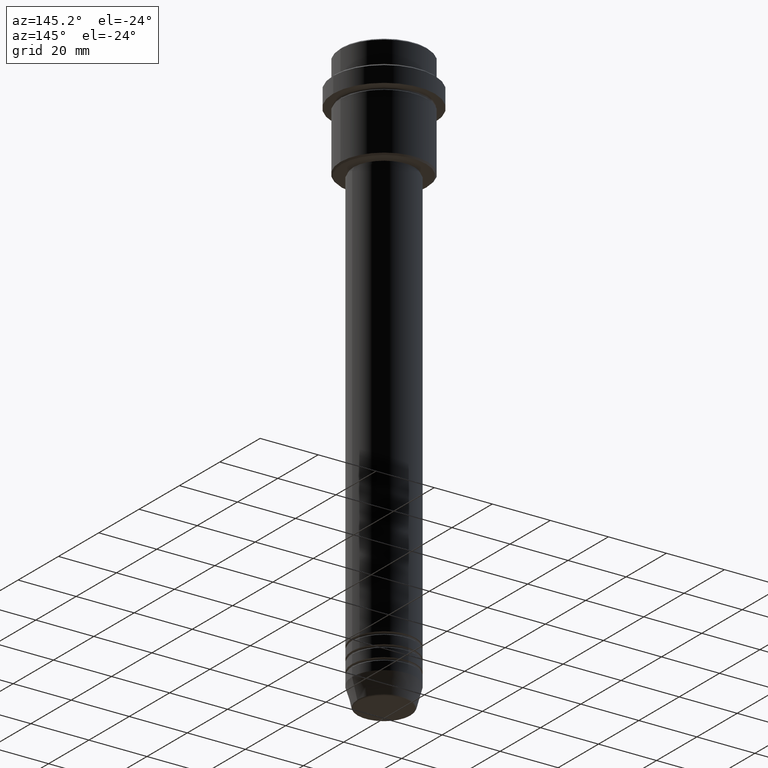
[diagram: clean part render]
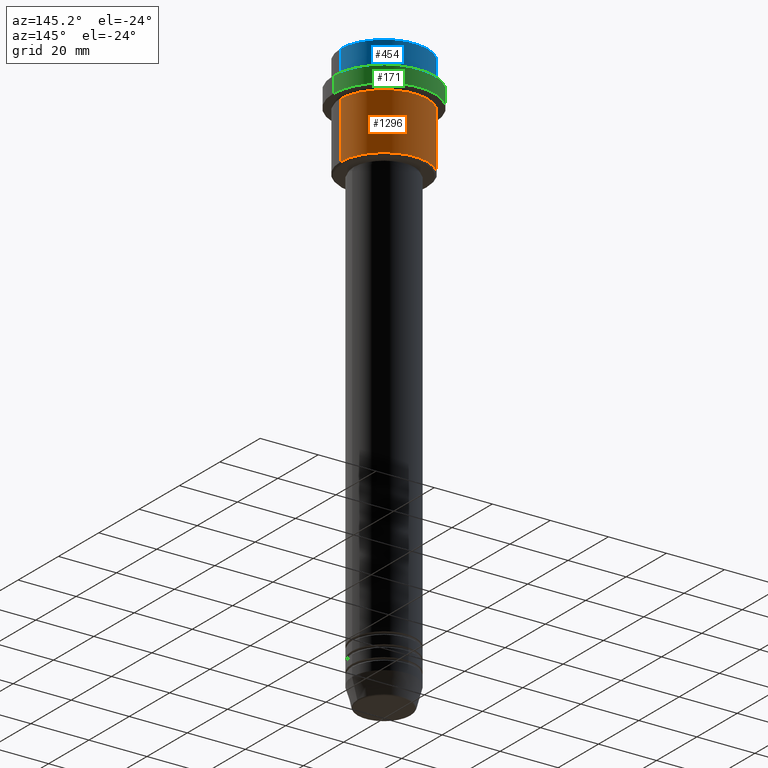
[diagram: same view with three faces highlighted in distinct colors, each labeled with its STEP entity id]
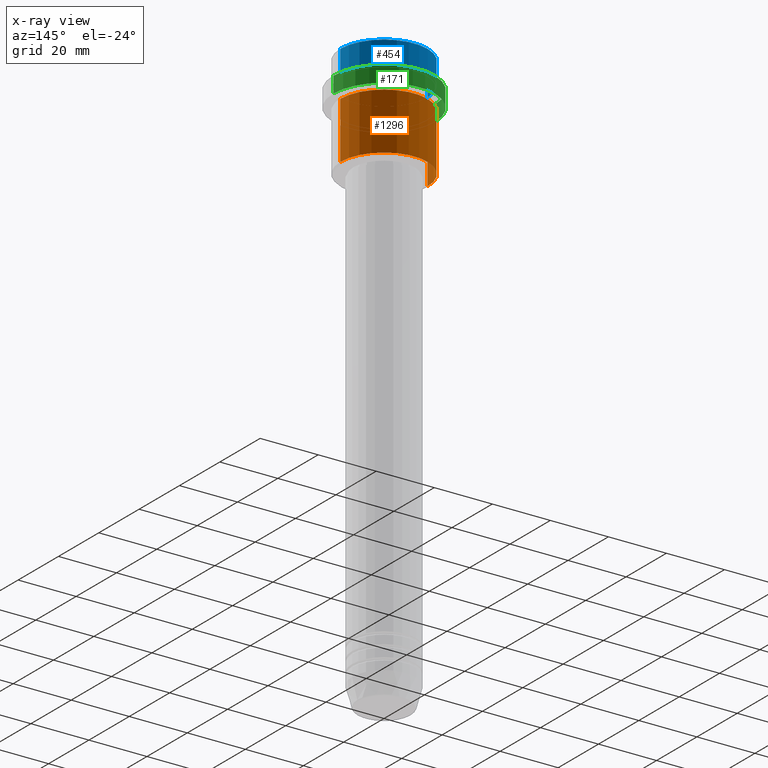
[diagram: x-ray of the same camera — body ghosted, the three highlighted faces saturated]
A machine part, auxiliary view with three faces highlighted in distinct colors.
The next image is the same camera in x-ray (body ghosted, the three faces saturated) — at least one of them is partly hidden behind the body in this view.
Their STEP definitions:

[orange] entity #1296 — the highlighted cylindrical surface (partial cylindrical patch) has radius 15 mm, axis along (-0, -0, 1).
#8 = AXIS2_PLACEMENT_3D ( 'NONE', #1033, #1349, #387 ) ;
#32 = VERTEX_POINT ( 'NONE', #1370 ) ;
#150 = AXIS2_PLACEMENT_3D ( 'NONE', #601, #364, #500 ) ;
#168 = VERTEX_POINT ( 'NONE', #420 ) ;
#216 = VERTEX_POINT ( 'NONE', #649 ) ;
#250 = CARTESIAN_POINT ( 'NONE',  ( -15.00000000000000000, 1.836970198721029589E-15, 0.000000000000000000 ) ) ;
#263 = DIRECTION ( 'NONE',  ( -0.000000000000000000, -0.000000000000000000, 1.000000000000000000 ) ) ;
#364 = DIRECTION ( 'NONE',  ( -0.000000000000000000, -0.000000000000000000, 1.000000000000000000 ) ) ;
#370 = ORIENTED_EDGE ( 'NONE', *, *, #783, .T. ) ;
#387 = DIRECTION ( 'NONE',  ( 1.000000000000000000, 0.000000000000000000, 0.000000000000000000 ) ) ;
#395 = CIRCLE ( 'NONE', #8, 15.00000000000000178 ) ;
#420 = CARTESIAN_POINT ( 'NONE',  ( -15.00000000000000355, 1.836970198721029983E-15, -16.00000000000000000 ) ) ;
#431 = LINE ( 'NONE', #1085, #685 ) ;
#442 = ORIENTED_EDGE ( 'NONE', *, *, #643, .F. ) ;
#489 = ORIENTED_EDGE ( 'NONE', *, *, #1287, .T. ) ;
#500 = DIRECTION ( 'NONE',  ( -1.000000000000000000, 0.000000000000000000, 0.000000000000000000 ) ) ;
#520 = ORIENTED_EDGE ( 'NONE', *, *, #947, .F. ) ;
#579 = CYLINDRICAL_SURFACE ( 'NONE', #688, 15.00000000000000000 ) ;
#601 = CARTESIAN_POINT ( 'NONE',  ( 0.000000000000000000, 0.000000000000000000, -35.50000000000004263 ) ) ;
#640 = VECTOR ( 'NONE', #1227, 1000.000000000000000 ) ;
#643 = EDGE_CURVE ( 'NONE', #216, #899, #431, .T. ) ;
#649 = CARTESIAN_POINT ( 'NONE',  ( 15.00000000000000000, 0.000000000000000000, -35.50000000000004263 ) ) ;
#685 = VECTOR ( 'NONE', #872, 1000.000000000000000 ) ;
#688 = AXIS2_PLACEMENT_3D ( 'NONE', #1372, #263, #1023 ) ;
#746 = EDGE_LOOP ( 'NONE', ( #489, #370, #520, #442 ) ) ;
#783 = EDGE_CURVE ( 'NONE', #32, #168, #786, .T. ) ;
#786 = LINE ( 'NONE', #250, #640 ) ;
#872 = DIRECTION ( 'NONE',  ( -0.000000000000000000, -0.000000000000000000, 1.000000000000000000 ) ) ;
#898 = CIRCLE ( 'NONE', #150, 15.00000000000000000 ) ;
#899 = VERTEX_POINT ( 'NONE', #918 ) ;
#915 = FACE_OUTER_BOUND ( 'NONE', #746, .T. ) ;
#918 = CARTESIAN_POINT ( 'NONE',  ( 15.00000000000000178, 0.000000000000000000, -16.00000000000000000 ) ) ;
#947 = EDGE_CURVE ( 'NONE', #899, #168, #395, .T. ) ;
#1023 = DIRECTION ( 'NONE',  ( 1.000000000000000000, 0.000000000000000000, 0.000000000000000000 ) ) ;
#1033 = CARTESIAN_POINT ( 'NONE',  ( 0.000000000000000000, 0.000000000000000000, -16.00000000000000000 ) ) ;
#1085 = CARTESIAN_POINT ( 'NONE',  ( 15.00000000000000000, 0.000000000000000000, 0.000000000000000000 ) ) ;
#1227 = DIRECTION ( 'NONE',  ( -0.000000000000000000, -0.000000000000000000, 1.000000000000000000 ) ) ;
#1287 = EDGE_CURVE ( 'NONE', #216, #32, #898, .T. ) ;
#1296 = ADVANCED_FACE ( 'NONE', ( #915 ), #579, .T. ) ;
#1349 = DIRECTION ( 'NONE',  ( -0.000000000000000000, -0.000000000000000000, 1.000000000000000000 ) ) ;
#1370 = CARTESIAN_POINT ( 'NONE',  ( -15.00000000000000000, 1.836970198721029589E-15, -35.50000000000004263 ) ) ;
#1372 = CARTESIAN_POINT ( 'NONE',  ( 0.000000000000000000, 0.000000000000000000, 0.000000000000000000 ) ) ;

[blue] entity #454 — the highlighted cylindrical surface (partial cylindrical patch) has radius 15 mm, axis along (-0, -0, 1).
#62 = EDGE_CURVE ( 'NONE', #514, #1172, #574, .T. ) ;
#66 = CARTESIAN_POINT ( 'NONE',  ( 15.00000000000000000, 0.000000000000000000, -0.5000000000000108802 ) ) ;
#127 = EDGE_CURVE ( 'NONE', #565, #837, #1032, .T. ) ;
#166 = AXIS2_PLACEMENT_3D ( 'NONE', #829, #921, #815 ) ;
#265 = EDGE_LOOP ( 'NONE', ( #467, #1025, #1345, #546 ) ) ;
#281 = FACE_OUTER_BOUND ( 'NONE', #265, .T. ) ;
#416 = VECTOR ( 'NONE', #1241, 1000.000000000000000 ) ;
#454 = ADVANCED_FACE ( 'NONE', ( #281 ), #1134, .T. ) ;
#467 = ORIENTED_EDGE ( 'NONE', *, *, #62, .T. ) ;
#514 = VERTEX_POINT ( 'NONE', #704 ) ;
#546 = ORIENTED_EDGE ( 'NONE', *, *, #853, .F. ) ;
#565 = VERTEX_POINT ( 'NONE', #641 ) ;
#574 = CIRCLE ( 'NONE', #1146, 15.00000000000000000 ) ;
#641 = CARTESIAN_POINT ( 'NONE',  ( -15.00000000000000000, 1.836970198721029589E-15, -0.5000000000000108802 ) ) ;
#668 = CARTESIAN_POINT ( 'NONE',  ( -15.00000000000000000, 1.836970198721029589E-15, -7.999999999999998224 ) ) ;
#704 = CARTESIAN_POINT ( 'NONE',  ( 15.00000000000000000, 0.000000000000000000, -7.999999999999998224 ) ) ;
#717 = DIRECTION ( 'NONE',  ( -0.000000000000000000, -0.000000000000000000, 1.000000000000000000 ) ) ;
#719 = LINE ( 'NONE', #1155, #416 ) ;
#756 = CARTESIAN_POINT ( 'NONE',  ( 0.000000000000000000, 0.000000000000000000, -0.5000000000000108802 ) ) ;
#815 = DIRECTION ( 'NONE',  ( 1.000000000000000000, 0.000000000000000000, 0.000000000000000000 ) ) ;
#829 = CARTESIAN_POINT ( 'NONE',  ( 0.000000000000000000, 0.000000000000000000, 0.000000000000000000 ) ) ;
#831 = CARTESIAN_POINT ( 'NONE',  ( -15.00000000000000000, 1.836970198721029589E-15, 0.000000000000000000 ) ) ;
#837 = VERTEX_POINT ( 'NONE', #66 ) ;
#853 = EDGE_CURVE ( 'NONE', #514, #837, #719, .T. ) ;
#864 = DIRECTION ( 'NONE',  ( 1.000000000000000000, 0.000000000000000000, 0.000000000000000000 ) ) ;
#921 = DIRECTION ( 'NONE',  ( -0.000000000000000000, -0.000000000000000000, 1.000000000000000000 ) ) ;
#946 = VECTOR ( 'NONE', #717, 1000.000000000000000 ) ;
#984 = AXIS2_PLACEMENT_3D ( 'NONE', #756, #1071, #864 ) ;
#1025 = ORIENTED_EDGE ( 'NONE', *, *, #1393, .T. ) ;
#1032 = CIRCLE ( 'NONE', #984, 15.00000000000000000 ) ;
#1071 = DIRECTION ( 'NONE',  ( 0.000000000000000000, 0.000000000000000000, -1.000000000000000000 ) ) ;
#1119 = LINE ( 'NONE', #831, #946 ) ;
#1134 = CYLINDRICAL_SURFACE ( 'NONE', #166, 15.00000000000000000 ) ;
#1146 = AXIS2_PLACEMENT_3D ( 'NONE', #1164, #1152, #1269 ) ;
#1152 = DIRECTION ( 'NONE',  ( -0.000000000000000000, -0.000000000000000000, 1.000000000000000000 ) ) ;
#1155 = CARTESIAN_POINT ( 'NONE',  ( 15.00000000000000000, 0.000000000000000000, 0.000000000000000000 ) ) ;
#1164 = CARTESIAN_POINT ( 'NONE',  ( 0.000000000000000000, 0.000000000000000000, -7.999999999999998224 ) ) ;
#1172 = VERTEX_POINT ( 'NONE', #668 ) ;
#1241 = DIRECTION ( 'NONE',  ( -0.000000000000000000, -0.000000000000000000, 1.000000000000000000 ) ) ;
#1269 = DIRECTION ( 'NONE',  ( 1.000000000000000000, 0.000000000000000000, 0.000000000000000000 ) ) ;
#1345 = ORIENTED_EDGE ( 'NONE', *, *, #127, .T. ) ;
#1393 = EDGE_CURVE ( 'NONE', #1172, #565, #1119, .T. ) ;

[green] entity #171 — the highlighted cylindrical surface (partial cylindrical patch) has radius 17.5 mm, axis along (-0, -0, 1).
#23 = DIRECTION ( 'NONE',  ( 1.000000000000000000, 0.000000000000000000, 0.000000000000000000 ) ) ;
#143 = CIRCLE ( 'NONE', #325, 17.50000000000000000 ) ;
#161 = ORIENTED_EDGE ( 'NONE', *, *, #294, .T. ) ;
#171 = ADVANCED_FACE ( 'NONE', ( #1203 ), #538, .T. ) ;
#175 = CARTESIAN_POINT ( 'NONE',  ( 0.000000000000000000, 0.000000000000000000, -9.500000000000026645 ) ) ;
#224 = VERTEX_POINT ( 'NONE', #732 ) ;
#294 = EDGE_CURVE ( 'NONE', #385, #767, #1263, .T. ) ;
#296 = LINE ( 'NONE', #973, #729 ) ;
#307 = CARTESIAN_POINT ( 'NONE',  ( 0.000000000000000000, 0.000000000000000000, 0.000000000000000000 ) ) ;
#325 = AXIS2_PLACEMENT_3D ( 'NONE', #175, #698, #605 ) ;
#385 = VERTEX_POINT ( 'NONE', #582 ) ;
#410 = DIRECTION ( 'NONE',  ( 1.000000000000000000, 0.000000000000000000, 0.000000000000000000 ) ) ;
#455 = ORIENTED_EDGE ( 'NONE', *, *, #517, .T. ) ;
#517 = EDGE_CURVE ( 'NONE', #224, #1247, #143, .T. ) ;
#521 = DIRECTION ( 'NONE',  ( -0.000000000000000000, -0.000000000000000000, 1.000000000000000000 ) ) ;
#538 = CYLINDRICAL_SURFACE ( 'NONE', #1210, 17.50000000000000000 ) ;
#582 = CARTESIAN_POINT ( 'NONE',  ( 17.50000000000000000, 0.000000000000000000, -15.00000000000000000 ) ) ;
#605 = DIRECTION ( 'NONE',  ( 1.000000000000000000, 0.000000000000000000, 0.000000000000000000 ) ) ;
#637 = AXIS2_PLACEMENT_3D ( 'NONE', #1344, #1105, #23 ) ;
#698 = DIRECTION ( 'NONE',  ( 0.000000000000000000, 0.000000000000000000, -1.000000000000000000 ) ) ;
#729 = VECTOR ( 'NONE', #521, 1000.000000000000000 ) ;
#732 = CARTESIAN_POINT ( 'NONE',  ( -17.50000000000000000, 2.143131898507868248E-15, -9.500000000000026645 ) ) ;
#767 = VERTEX_POINT ( 'NONE', #768 ) ;
#768 = CARTESIAN_POINT ( 'NONE',  ( -17.50000000000000000, 2.143131898507868248E-15, -15.00000000000000000 ) ) ;
#835 = ORIENTED_EDGE ( 'NONE', *, *, #1024, .T. ) ;
#882 = LINE ( 'NONE', #1417, #1013 ) ;
#954 = EDGE_LOOP ( 'NONE', ( #161, #835, #455, #978 ) ) ;
#973 = CARTESIAN_POINT ( 'NONE',  ( -17.50000000000000000, 2.143131898507868248E-15, 0.000000000000000000 ) ) ;
#978 = ORIENTED_EDGE ( 'NONE', *, *, #1214, .F. ) ;
#986 = CARTESIAN_POINT ( 'NONE',  ( 17.50000000000000000, 0.000000000000000000, -9.500000000000026645 ) ) ;
#1013 = VECTOR ( 'NONE', #1107, 1000.000000000000000 ) ;
#1024 = EDGE_CURVE ( 'NONE', #767, #224, #296, .T. ) ;
#1105 = DIRECTION ( 'NONE',  ( -0.000000000000000000, -0.000000000000000000, 1.000000000000000000 ) ) ;
#1107 = DIRECTION ( 'NONE',  ( -0.000000000000000000, -0.000000000000000000, 1.000000000000000000 ) ) ;
#1203 = FACE_OUTER_BOUND ( 'NONE', #954, .T. ) ;
#1210 = AXIS2_PLACEMENT_3D ( 'NONE', #307, #1317, #410 ) ;
#1214 = EDGE_CURVE ( 'NONE', #385, #1247, #882, .T. ) ;
#1247 = VERTEX_POINT ( 'NONE', #986 ) ;
#1263 = CIRCLE ( 'NONE', #637, 17.50000000000000000 ) ;
#1317 = DIRECTION ( 'NONE',  ( -0.000000000000000000, -0.000000000000000000, 1.000000000000000000 ) ) ;
#1344 = CARTESIAN_POINT ( 'NONE',  ( 0.000000000000000000, 0.000000000000000000, -15.00000000000000000 ) ) ;
#1417 = CARTESIAN_POINT ( 'NONE',  ( 17.50000000000000000, 0.000000000000000000, 0.000000000000000000 ) ) ;